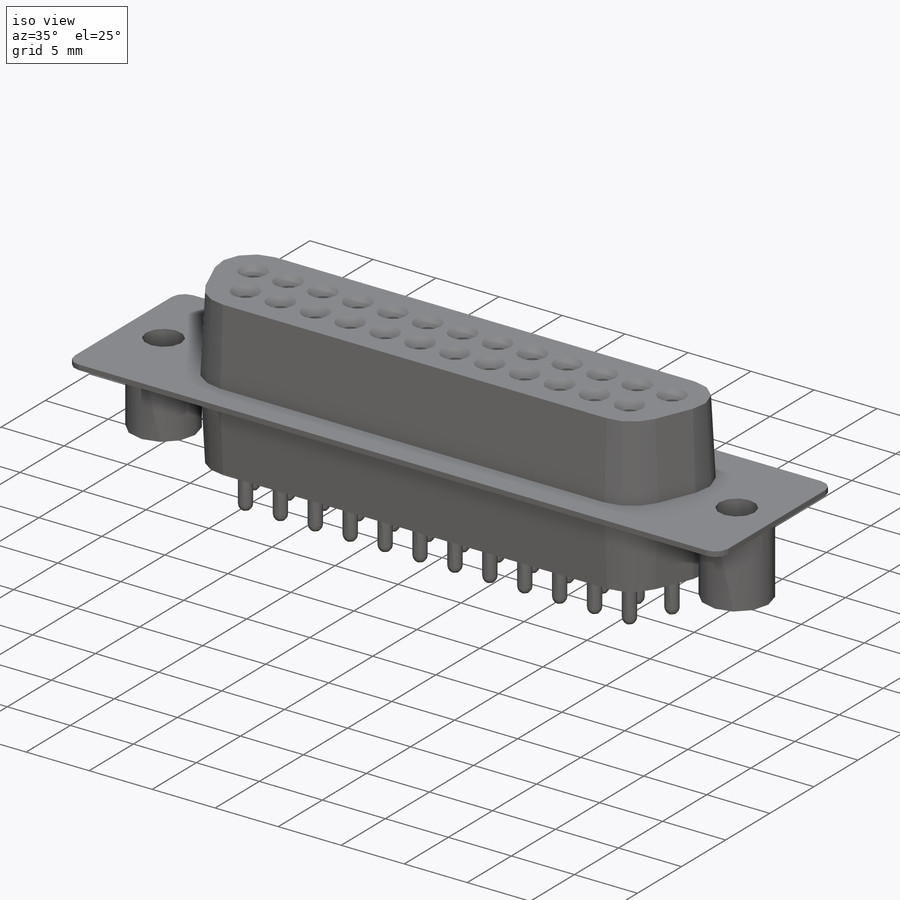
[diagram: iso view]
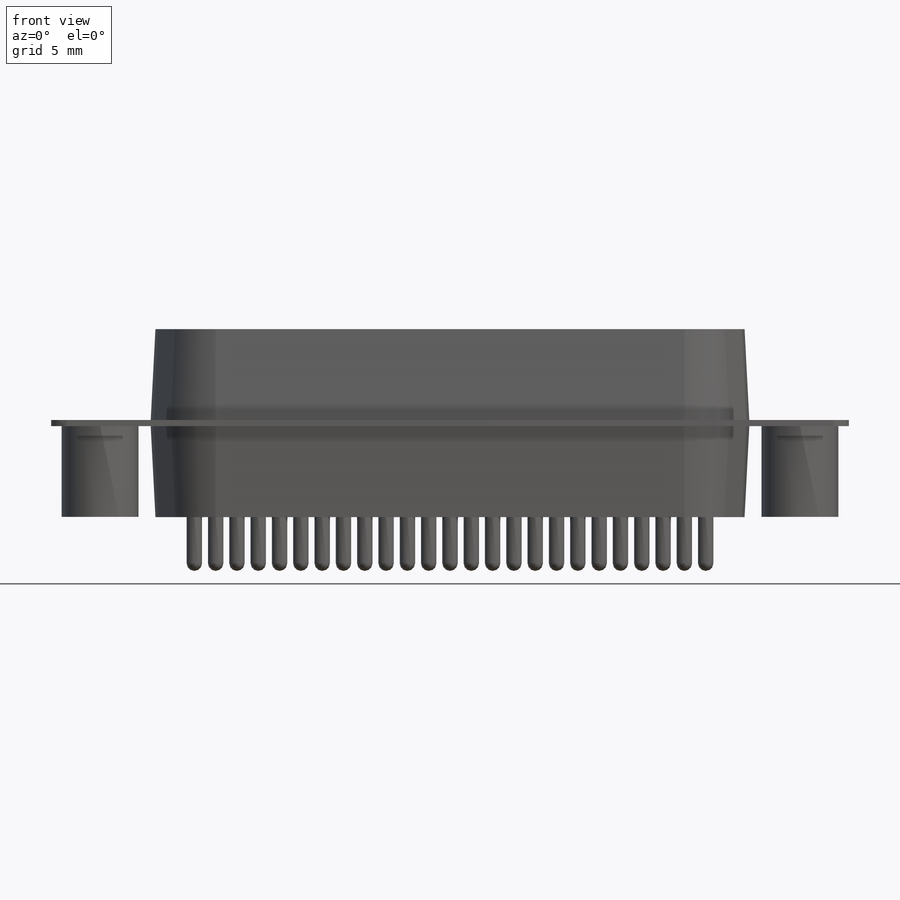
[diagram: front view]
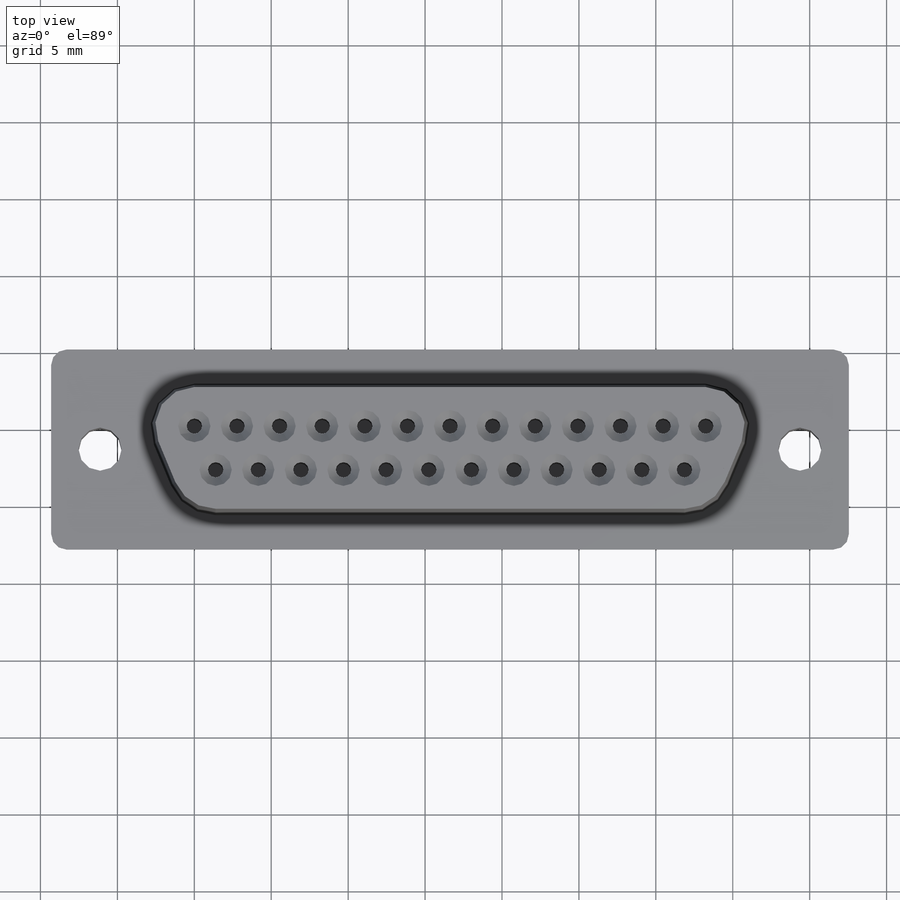
[diagram: top view]
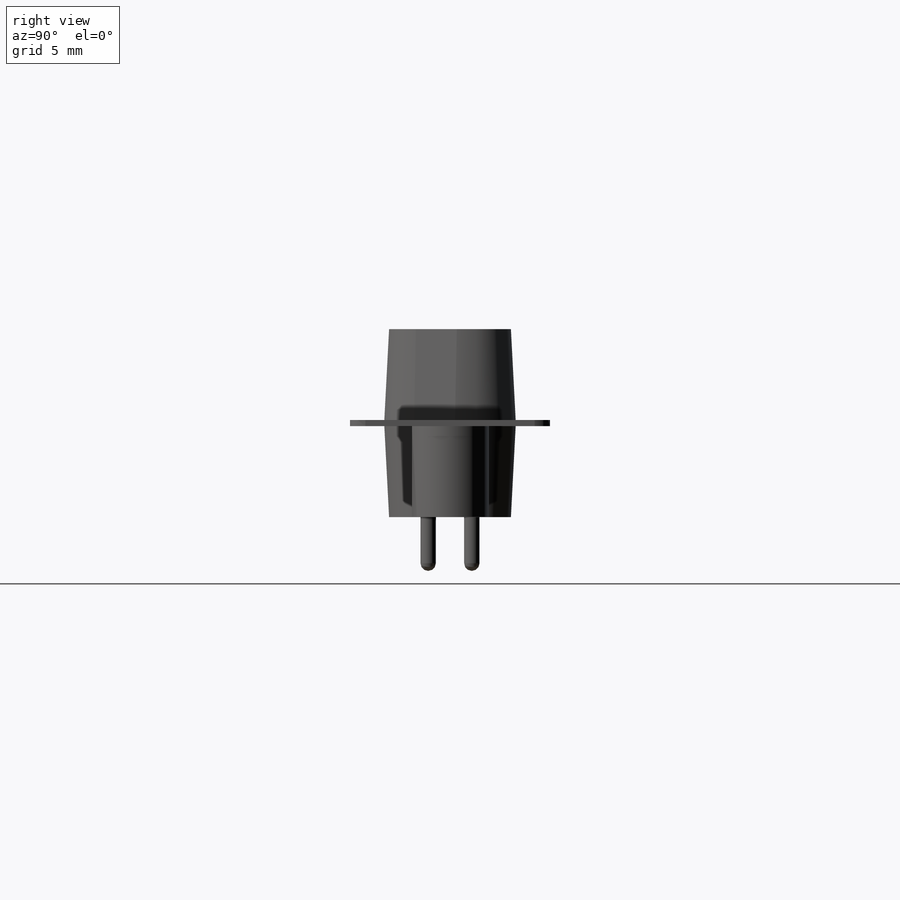
[diagram: right view]
SOLIDWORKS PART (.sldprt)
format: sldprt  version: not decoded by parser v0  size: 489,472 bytes
history: native  units: mm
features: sketch x10, extrude x5, cut_extrude x4, mirror x2, dome x2, chamfer x2, pattern_linear x2, plane x2, material x1 (+12 scaffold rows collapsed)
feature tree (42):
  scaffold x12  (default folders/planes/origin — collapsed)
  material  "Material <not specified>"
  sketch  "Sketch1"  dims[D3=2.84mm D6=2.54mm D1=33.24mm D2=30.47mm D4=2.54mm D5=7.92mm]
  extrude  "Base-Extrude"  Depth=5.91mm
  sketch  "Sketch2"  dims[D3=1.0mm D1=51.85mm D2=13.0mm]
  extrude  "Boss-Extrude1"  Depth=0.2mm
  sketch  "Sketch3"  dims[D1=0.4mm]
  cut_extrude  "Cut-Extrude1"  Depth=0.001mm
  mirror  "Boss-Mirror1"
  sketch  "Sketch4"  dims[D1=1.0mm]
  cut_extrude  "Cut-Extrude5"  Depth=6mm
  sketch  "Sketch5"
  extrude  "Boss-Extrude5"  Depth=3mm
  dome  "Dome3"
  chamfer  "Chamfer1"  Distance=0.55mm Angle=45deg
  pattern_linear  "LPattern1"  Count1=13 Count2=1 Spacing1=2.77mm Spacing2=50mm
  sketch  "Sketch6"  dims[D1=2.84mm]
  cut_extrude  "Cut-Extrude8"  Depth=6mm
  sketch  "Sketch7"
  extrude  "Boss-Extrude6"  Depth=3mm
  dome  "Dome4"
  chamfer  "Chamfer3"  Distance=0.55mm Angle=45deg
  pattern_linear  "LPattern3"  Count1=12 Count2=1 Spacing1=2.77mm Spacing2=50mm
  plane  "Plane1"
  sketch  "Sketch8"  dims[D1=5.0mm D2=3.18mm D3=6.48mm]
  extrude  "Boss-Extrude4"  Depth=5.9mm
  sketch  "Sketch9"  dims[D1=2.8mm]
  cut_extrude  "Cut-Extrude4"  [1 undecoded]
  mirror  "Mirror1"
  plane  "Board Plane"  Offset=5.08mm
  sketch  "Component_Outline"
decode coverage: 19 of 27 modeling features carry decoded parameters
note: 1 parameter value undecoded
note: suppression state not decoded; provenance and decode notes live in map.json
